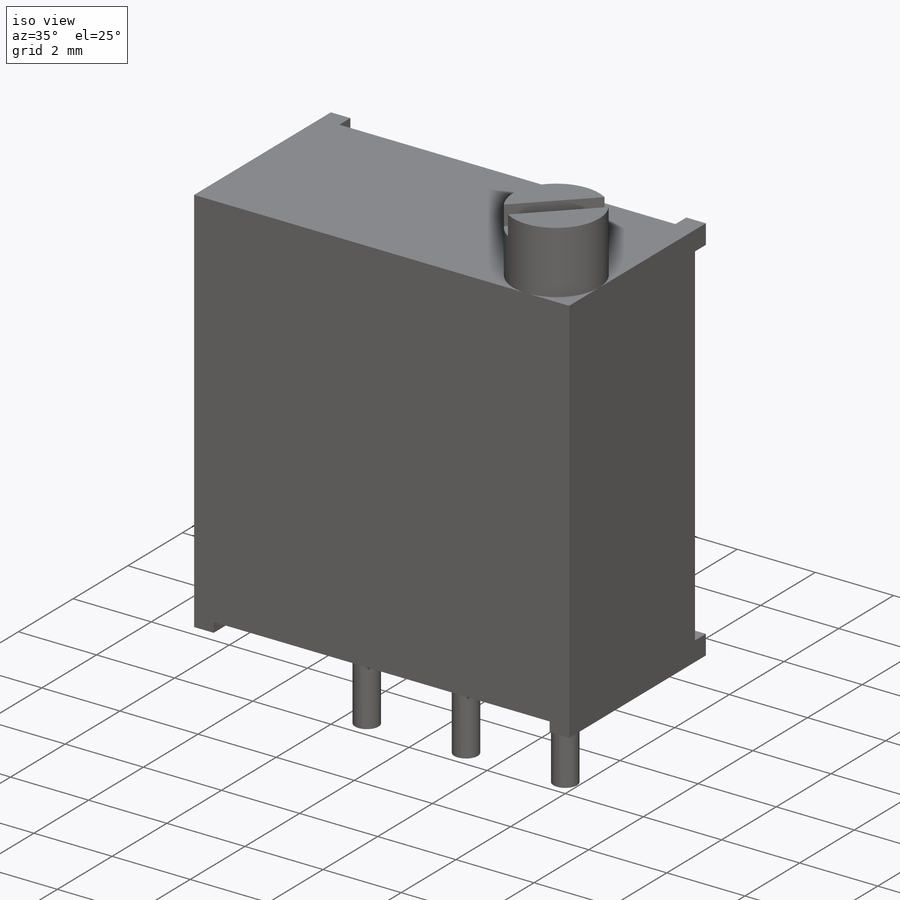
[diagram: iso view]
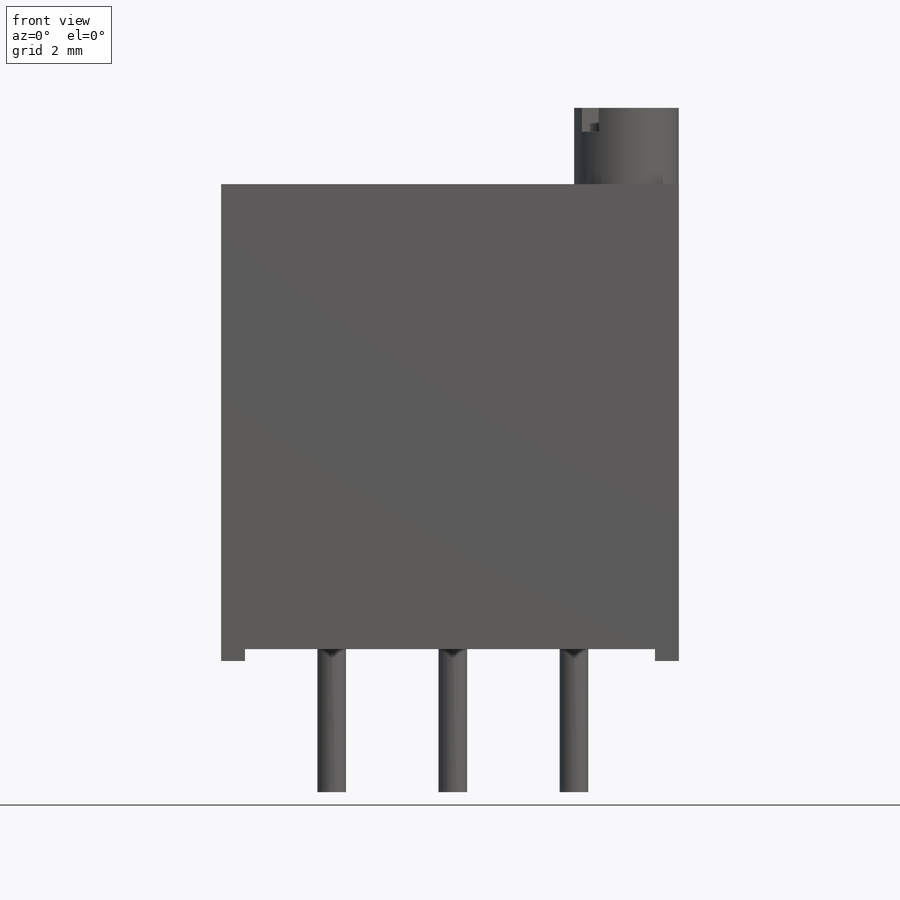
[diagram: front view]
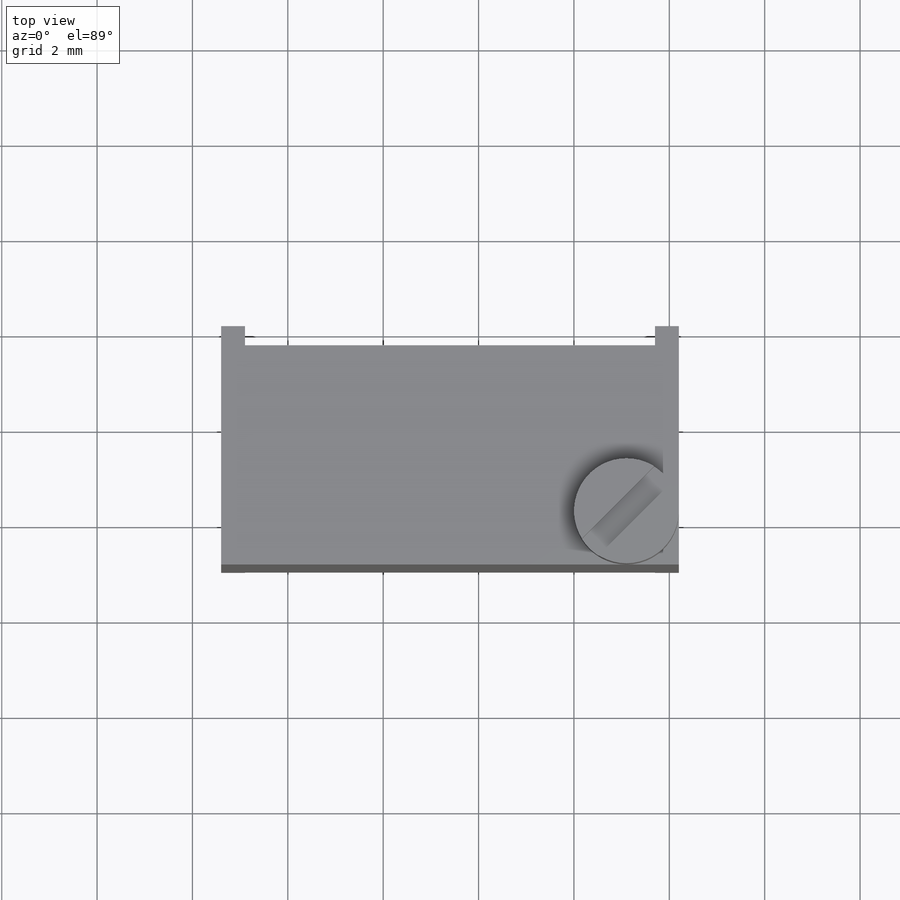
[diagram: top view]
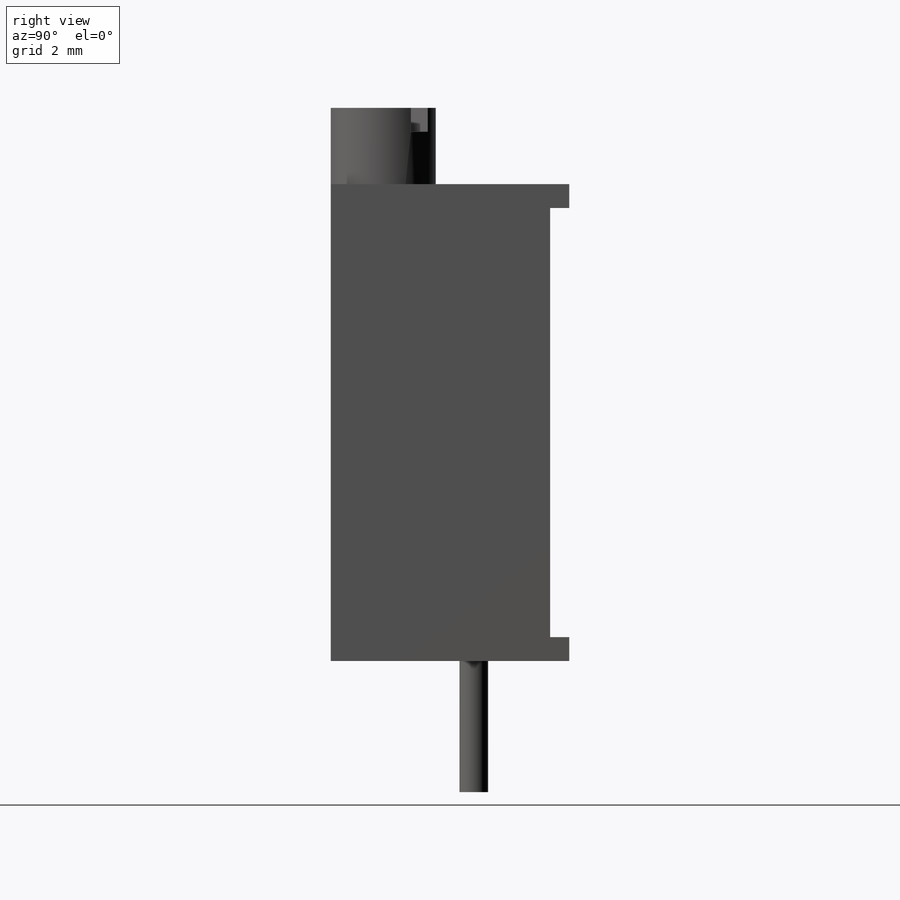
[diagram: right view]
SOLIDWORKS PART (.sldprt)
format: sldprt  version: not decoded by parser v0  size: 204,288 bytes
history: native  units: mm
features: sketch x7, extrude x3, cut_extrude x3, material x1 (+11 scaffold rows collapsed)
feature tree (25):
  scaffold x11  (default folders/planes/origin — collapsed)
  material  "Material <not specified>"
  sketch  "Component_Outline"  dims[c1.D1=5.0mm c1.D2=9.6mm c1.D3=3.0mm c1.D4=~3.020862mm c2.D4=90.0deg c3.D4=2.2mm]
  sketch  "3DSketch1"
  extrude  "Boss-Extrude1"  Depth=10mm
  sketch  "Sketch1"  dims[D1=0.5mm]
  cut_extrude  "Cut-Extrude1"  Depth=0.4mm
  sketch  "Sketch2"
  cut_extrude  "Cut-Extrude2"  Depth=0.25mm
  sketch  "Sketch3"  dims[D1=0.6mm D2=2.54mm]
  extrude  "Boss-Extrude2"  Depth=3mm
  sketch  "Sketch4"  dims[D1=2.2mm]
  extrude  "Boss-Extrude3"  Depth=1.6mm
  sketch  "Sketch5"  dims[c1.D1=1.1mm c2.D1=45.0deg c2.D2=0.5mm]
  cut_extrude  "Cut-Extrude3"  Depth=0.5mm
decode coverage: 11 of 13 modeling features carry decoded parameters
note: ~ marks probable driven/reference dimensions
note: suppression state not decoded; provenance and decode notes live in map.json
